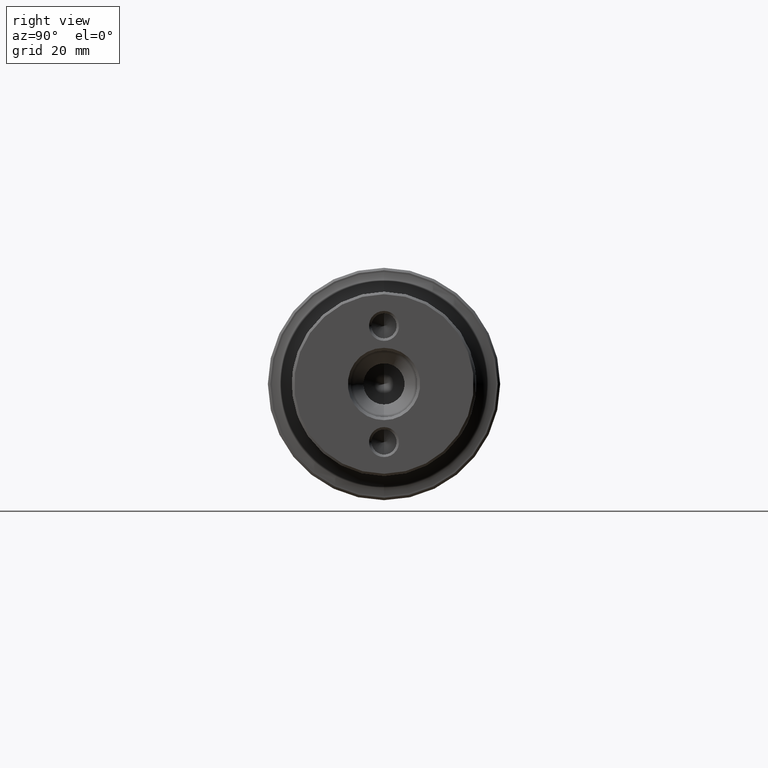
[diagram: clean part render]
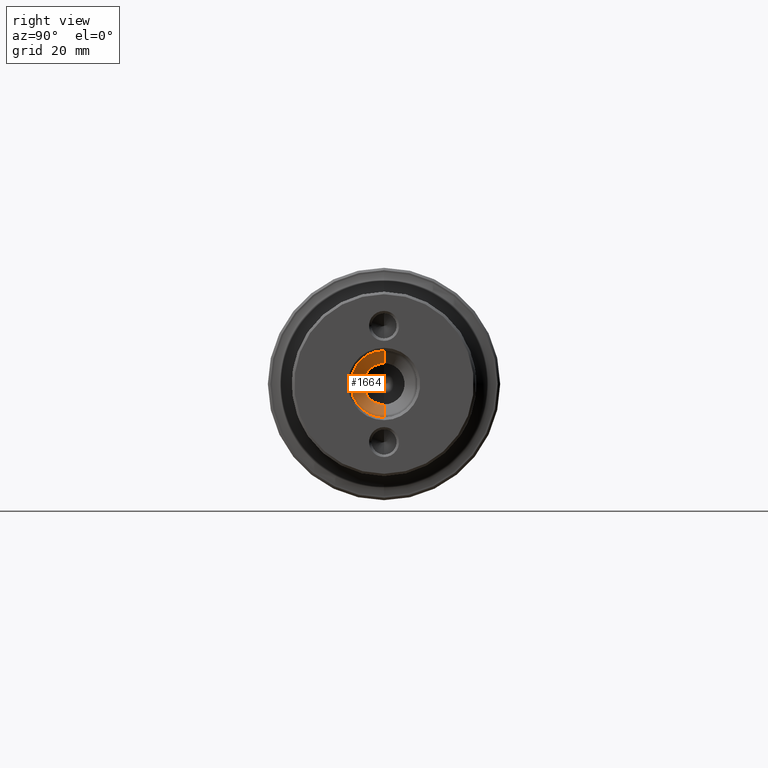
[diagram: same view with one face highlighted and labeled with its STEP entity id]
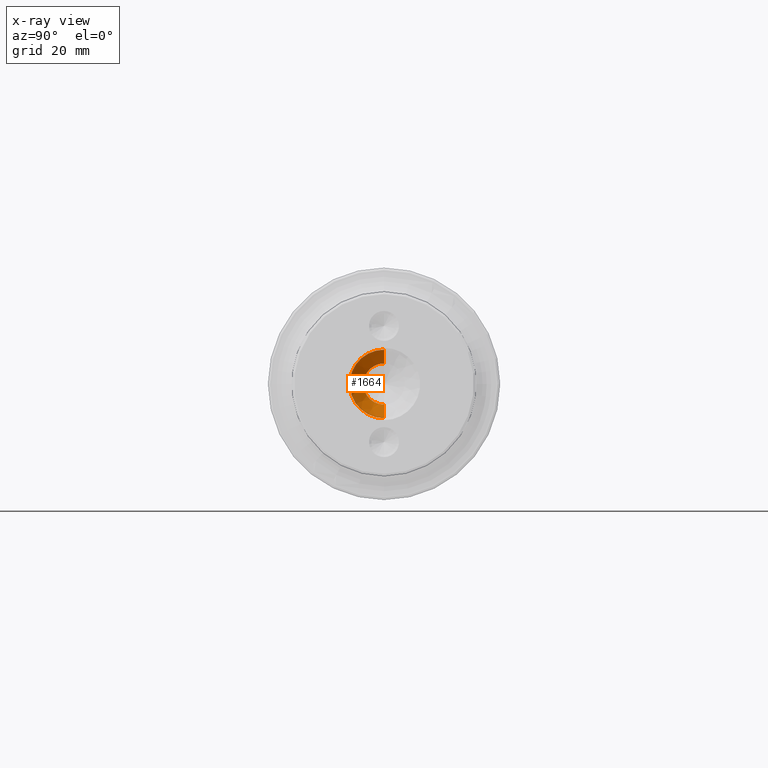
[diagram: x-ray of the same camera — body ghosted, the highlighted face saturated]
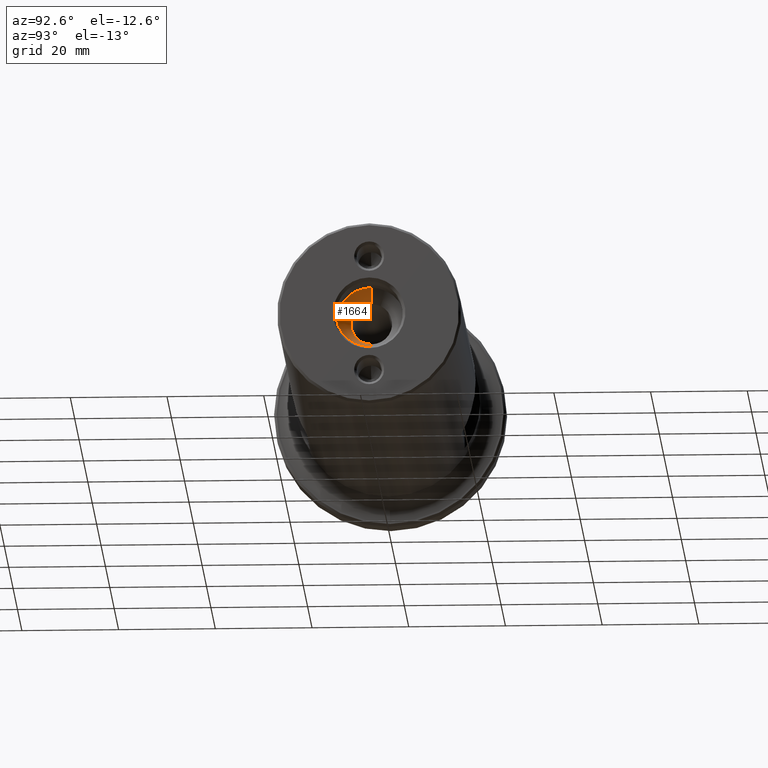
[diagram: same view with one face highlighted and labeled with its STEP entity id]
A machine part, right view. The second image highlights one B-rep face of the part: STEP entity #1664.
The next image is the same camera in x-ray: the body ghosted, the highlighted face saturated — about 0% of this face is hidden behind the body in this view.
A second angle (auxiliary view) of the same face is appended — the face is thin or edge-on in the first view.
In plain terms, the highlighted conical surface has half-angle 45 deg.
Its self-contained STEP definition (entity closure, byte-faithful):
#13 = CARTESIAN_POINT ( 'NONE',  ( -8.000000000000000000, 0.0000000000000000000, 0.0000000000000000000 ) ) ;
#15 = DIRECTION ( 'NONE',  ( 0.0000000000000000000, 0.0000000000000000000, -1.000000000000000000 ) ) ;
#17 = DIRECTION ( 'NONE',  ( 1.000000000000000000, -0.0000000000000000000, -0.0000000000000000000 ) ) ;
#141 = DIRECTION ( 'NONE',  ( 0.0000000000000000000, 0.0000000000000000000, -1.000000000000000000 ) ) ;
#143 = DIRECTION ( 'NONE',  ( 1.000000000000000000, -0.0000000000000000000, -0.0000000000000000000 ) ) ;
#144 = CARTESIAN_POINT ( 'NONE',  ( -8.000000000000000000, 0.0000000000000000000, 0.0000000000000000000 ) ) ;
#146 = DIRECTION ( 'NONE',  ( 0.7071067811865513500, 8.659560562354886000E-017, 0.7071067811865436900 ) ) ;
#149 = CARTESIAN_POINT ( 'NONE',  ( -8.000000000000000000, 8.694992273946205800E-016, 7.099999999999997900 ) ) ;
#156 = DIRECTION ( 'NONE',  ( 0.7071067811865513500, 0.0000000000000000000, -0.7071067811865436900 ) ) ;
#159 = CARTESIAN_POINT ( 'NONE',  ( -8.000000000000000000, 0.0000000000000000000, -7.099999999999997900 ) ) ;
#216 = CARTESIAN_POINT ( 'NONE',  ( -8.000000000000000000, 0.0000000000000000000, -7.099999999999997900 ) ) ;
#220 = DIRECTION ( 'NONE',  ( 0.0000000000000000000, 0.0000000000000000000, -1.000000000000000000 ) ) ;
#222 = DIRECTION ( 'NONE',  ( -1.000000000000000000, 0.0000000000000000000, 0.0000000000000000000 ) ) ;
#223 = CARTESIAN_POINT ( 'NONE',  ( -10.85000000000004100, 0.0000000000000000000, 0.0000000000000000000 ) ) ;
#406 = CARTESIAN_POINT ( 'NONE',  ( -10.85000000000004100, 0.0000000000000000000, -4.249999999999990200 ) ) ;
#408 = CARTESIAN_POINT ( 'NONE',  ( -8.000000000000000000, 8.694992273946205800E-016, 7.099999999999997900 ) ) ;
#423 = CARTESIAN_POINT ( 'NONE',  ( -10.85000000000004100, 6.949870585161221800E-016, 4.249999999999990200 ) ) ;
#633 = EDGE_LOOP ( 'NONE', ( #993, #994, #995, #996 ) ) ;
#770 = AXIS2_PLACEMENT_3D ( 'NONE', #13, #17, #15 ) ;
#789 = AXIS2_PLACEMENT_3D ( 'NONE', #144, #143, #141 ) ;
#795 = AXIS2_PLACEMENT_3D ( 'NONE', #223, #222, #220 ) ;
#993 = ORIENTED_EDGE ( 'NONE', *, *, #1381, .T. ) ;
#994 = ORIENTED_EDGE ( 'NONE', *, *, #1401, .T. ) ;
#995 = ORIENTED_EDGE ( 'NONE', *, *, #1402, .T. ) ;
#996 = ORIENTED_EDGE ( 'NONE', *, *, #1403, .F. ) ;
#1045 = VERTEX_POINT ( 'NONE', #423 ) ;
#1047 = VERTEX_POINT ( 'NONE', #406 ) ;
#1051 = VERTEX_POINT ( 'NONE', #408 ) ;
#1064 = VERTEX_POINT ( 'NONE', #216 ) ;
#1381 = EDGE_CURVE ( 'NONE', #1047, #1045, #1781, .T. ) ;
#1401 = EDGE_CURVE ( 'NONE', #1045, #1051, #1749, .T. ) ;
#1402 = EDGE_CURVE ( 'NONE', #1051, #1064, #1747, .T. ) ;
#1403 = EDGE_CURVE ( 'NONE', #1047, #1064, #1745, .T. ) ;
#1664 = ADVANCED_FACE ( 'NONE', ( #2019 ), #1997, .F. ) ;
#1743 = VECTOR ( 'NONE', #156, 1000.000000000000000 ) ;
#1745 = LINE ( 'NONE', #159, #1743 ) ;
#1746 = VECTOR ( 'NONE', #146, 1000.000000000000000 ) ;
#1747 = CIRCLE ( 'NONE', #789, 7.099999999999997900 ) ;
#1749 = LINE ( 'NONE', #149, #1746 ) ;
#1781 = CIRCLE ( 'NONE', #795, 4.249999999999990200 ) ;
#1997 = CONICAL_SURFACE ( 'NONE', #770, 7.099999999999997900, 0.7853981633974428400 ) ;
#2019 = FACE_OUTER_BOUND ( 'NONE', #633, .T. ) ;